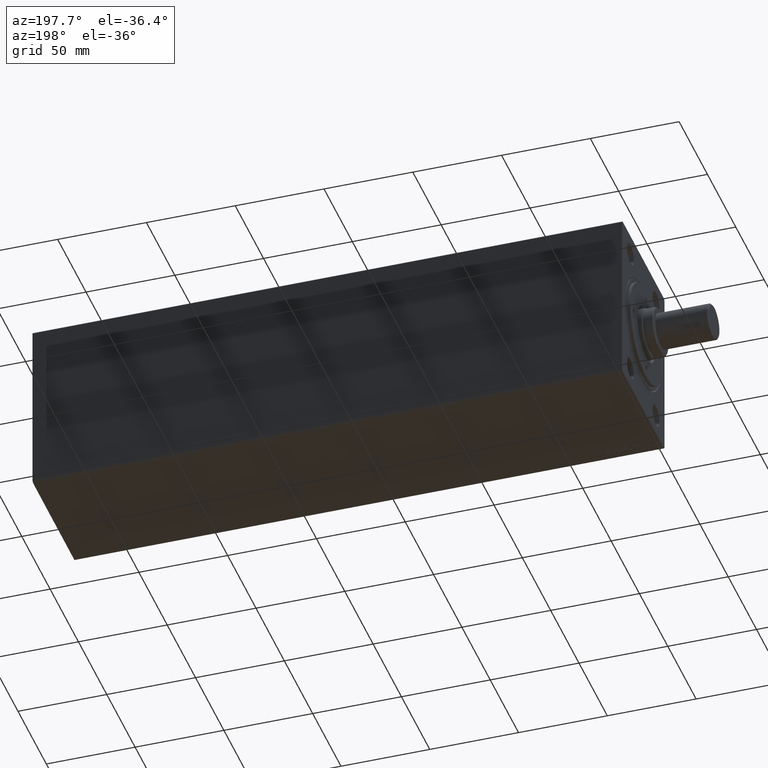
[diagram: clean part render]
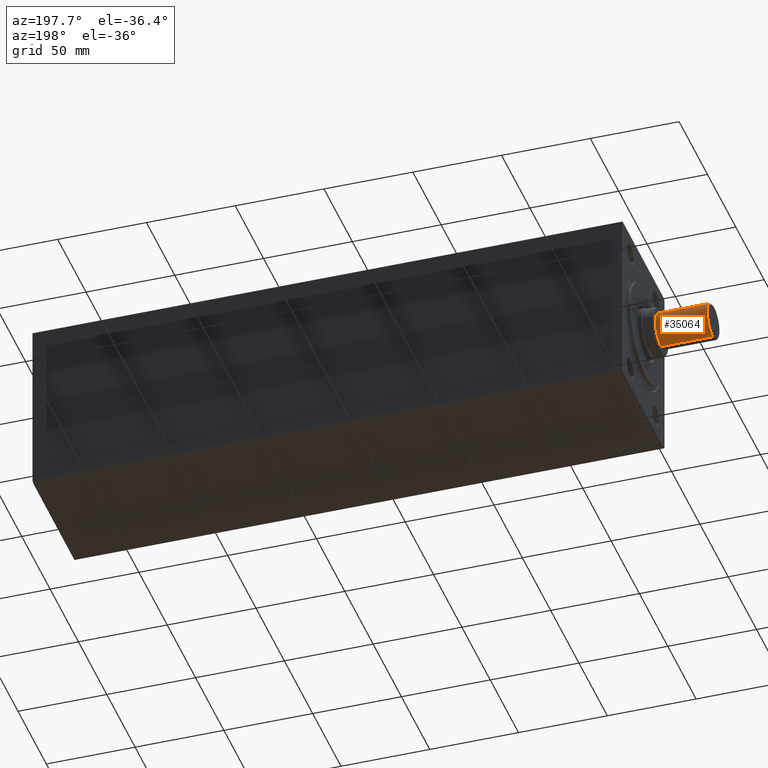
[diagram: same view with one face highlighted and labeled with its STEP entity id]
A machine part, auxiliary view. The second image highlights one B-rep face of the part: STEP entity #35064.
In plain terms, the highlighted cylindrical surface (edge-blend (fillet) strip) has radius 10 mm, axis along (1, -0, -0).
Its self-contained STEP definition (entity closure, byte-faithful):
#506 = VECTOR ( 'NONE', #17178, 1000.000000000000000 ) ;
#1817 = CARTESIAN_POINT ( 'NONE',  ( 0.000000000000000000, 0.000000000000000000, -29.19999999999999574 ) ) ;
#1851 = CARTESIAN_POINT ( 'NONE',  ( -10.00000000000000000, 1.224646799147353256E-15, -29.19999999999999574 ) ) ;
#1908 = DIRECTION ( 'NONE',  ( 1.000000000000000000, 0.000000000000000000, 0.000000000000000000 ) ) ;
#2664 = ORIENTED_EDGE ( 'NONE', *, *, #23636, .T. ) ;
#6151 = VERTEX_POINT ( 'NONE', #22684 ) ;
#7308 = CARTESIAN_POINT ( 'NONE',  ( 10.00000000000000000, 0.000000000000000000, -30.00000000000000000 ) ) ;
#7340 = DIRECTION ( 'NONE',  ( 0.000000000000000000, 0.000000000000000000, 1.000000000000000000 ) ) ;
#8571 = VECTOR ( 'NONE', #33185, 1000.000000000000000 ) ;
#10127 = ORIENTED_EDGE ( 'NONE', *, *, #14832, .F. ) ;
#10240 = EDGE_CURVE ( 'NONE', #6151, #35212, #27173, .T. ) ;
#12121 = DIRECTION ( 'NONE',  ( -0.000000000000000000, -0.000000000000000000, 1.000000000000000000 ) ) ;
#12429 = FACE_OUTER_BOUND ( 'NONE', #29013, .T. ) ;
#14832 = EDGE_CURVE ( 'NONE', #6151, #43847, #34388, .T. ) ;
#15358 = CARTESIAN_POINT ( 'NONE',  ( 0.000000000000000000, 0.000000000000000000, -30.00000000000000000 ) ) ;
#17178 = DIRECTION ( 'NONE',  ( 0.000000000000000000, 0.000000000000000000, 1.000000000000000000 ) ) ;
#18904 = LINE ( 'NONE', #19551, #8571 ) ;
#19551 = CARTESIAN_POINT ( 'NONE',  ( -10.00000000000000000, 1.224646799147353256E-15, -30.00000000000000000 ) ) ;
#22145 = CIRCLE ( 'NONE', #40705, 10.00000000000000000 ) ;
#22334 = EDGE_CURVE ( 'NONE', #43847, #37202, #22145, .T. ) ;
#22684 = CARTESIAN_POINT ( 'NONE',  ( 10.00000000000000000, 0.000000000000000000, -29.19999999999999574 ) ) ;
#22962 = CARTESIAN_POINT ( 'NONE',  ( 0.000000000000000000, 0.000000000000000000, 0.000000000000000000 ) ) ;
#23055 = AXIS2_PLACEMENT_3D ( 'NONE', #15358, #7340, #29008 ) ;
#23636 = EDGE_CURVE ( 'NONE', #35212, #37202, #18904, .T. ) ;
#27173 = CIRCLE ( 'NONE', #32193, 10.00000000000000000 ) ;
#27401 = ORIENTED_EDGE ( 'NONE', *, *, #10240, .T. ) ;
#27992 = CARTESIAN_POINT ( 'NONE',  ( 10.00000000000000000, 0.000000000000000000, 0.000000000000000000 ) ) ;
#29008 = DIRECTION ( 'NONE',  ( 1.000000000000000000, 0.000000000000000000, 0.000000000000000000 ) ) ;
#29013 = EDGE_LOOP ( 'NONE', ( #27401, #2664, #36841, #10127 ) ) ;
#32193 = AXIS2_PLACEMENT_3D ( 'NONE', #1817, #12121, #39426 ) ;
#33185 = DIRECTION ( 'NONE',  ( 0.000000000000000000, 0.000000000000000000, 1.000000000000000000 ) ) ;
#34388 = LINE ( 'NONE', #7308, #506 ) ;
#35054 = CARTESIAN_POINT ( 'NONE',  ( -10.00000000000000000, 1.224646799147353256E-15, 0.000000000000000000 ) ) ;
#35064 = ADVANCED_FACE ( 'NONE', ( #12429 ), #42864, .T. ) ;
#35212 = VERTEX_POINT ( 'NONE', #1851 ) ;
#36363 = DIRECTION ( 'NONE',  ( 0.000000000000000000, 0.000000000000000000, 1.000000000000000000 ) ) ;
#36841 = ORIENTED_EDGE ( 'NONE', *, *, #22334, .F. ) ;
#37202 = VERTEX_POINT ( 'NONE', #35054 ) ;
#39426 = DIRECTION ( 'NONE',  ( 1.000000000000000000, 0.000000000000000000, 0.000000000000000000 ) ) ;
#40705 = AXIS2_PLACEMENT_3D ( 'NONE', #22962, #36363, #1908 ) ;
#42864 = CYLINDRICAL_SURFACE ( 'NONE', #23055, 10.00000000000000000 ) ;
#43847 = VERTEX_POINT ( 'NONE', #27992 ) ;